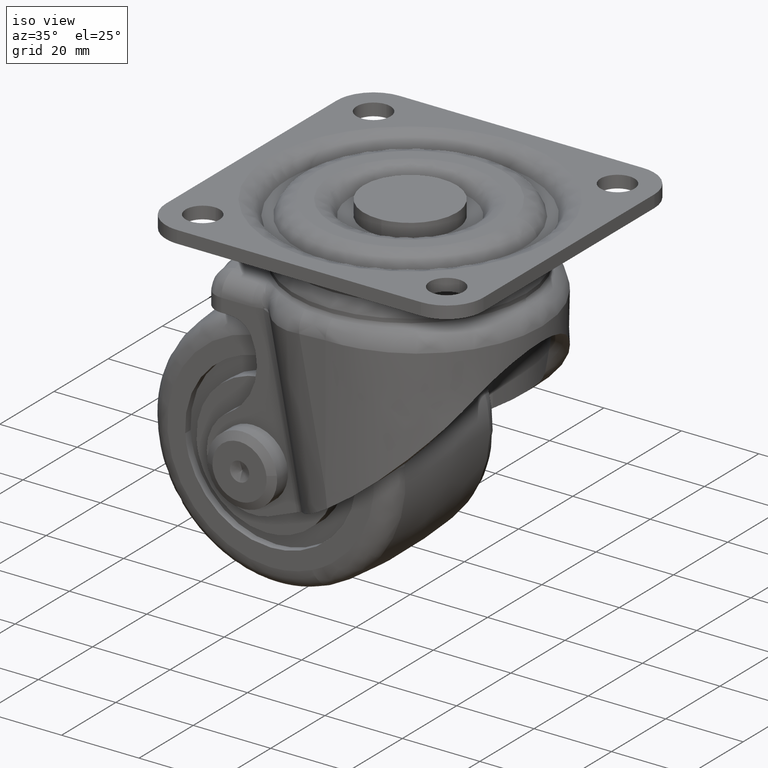
[diagram: clean part render]
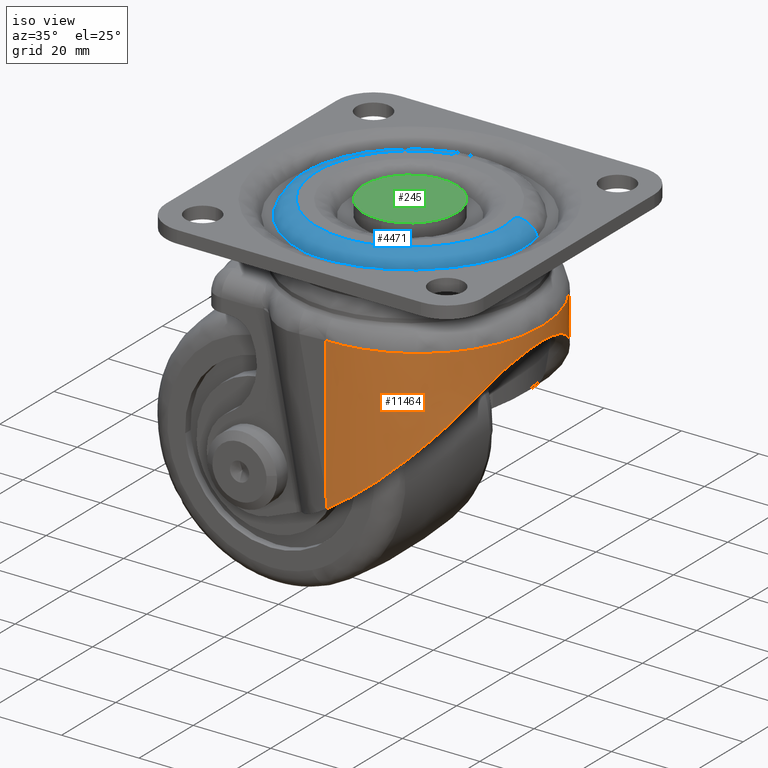
[diagram: same view with three faces highlighted in distinct colors, each labeled with its STEP entity id]
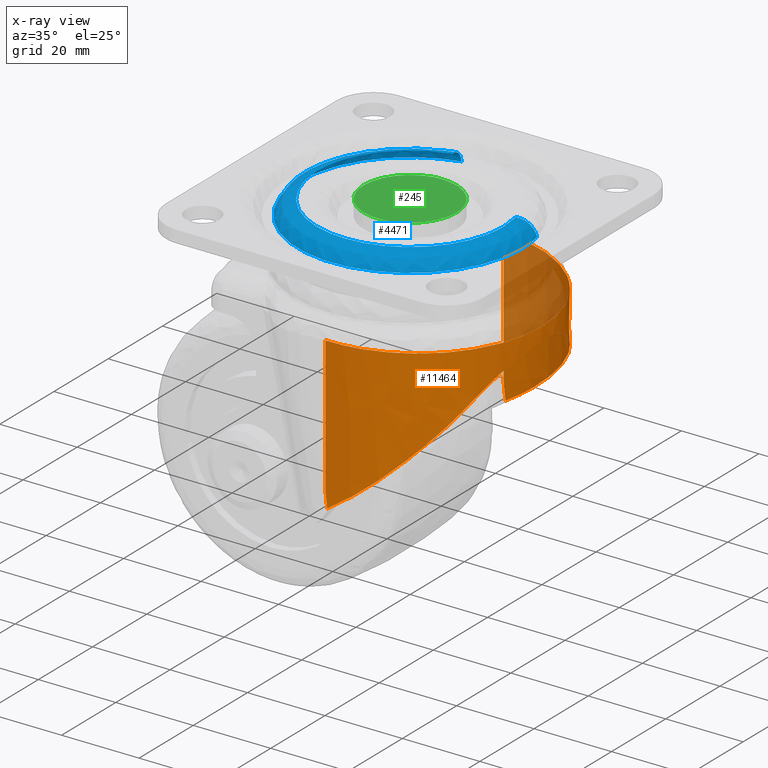
[diagram: x-ray of the same camera — body ghosted, the three highlighted faces saturated]
A machine part, iso view with three faces highlighted in distinct colors.
The next image is the same camera in x-ray (body ghosted, the three faces saturated) — at least one of them is partly hidden behind the body in this view.
Their STEP definitions:

[orange] entity #11464 — the highlighted face is a freeform B-spline surface patch.
#7879=CARTESIAN_POINT('',(7.828067399618530,32.873505000000087,-25.250238857549650));
#7880=VERTEX_POINT('',#7879);
#8230=CARTESIAN_POINT('',(7.828067198806939,-32.873505000000087,-25.250238814185099));
#8231=VERTEX_POINT('',#8230);
#8245=CARTESIAN_POINT('',(7.828067399618530,32.873505000000087,-25.250238857549650));
#8246=CARTESIAN_POINT('',(8.093279971898323,32.873504998305073,-25.307510195833391));
#8247=CARTESIAN_POINT('',(8.358567195679328,32.870140758915191,-25.364759514810132));
#8248=CARTESIAN_POINT('',(8.887618360227270,32.856752036419152,-25.478854672692449));
#8249=CARTESIAN_POINT('',(9.151562844805241,32.846730079416353,-25.535739527853622));
#8250=CARTESIAN_POINT('',(9.941670981653529,32.806786243524662,-25.705912584852829));
#8251=CARTESIAN_POINT('',(10.466110402130370,32.766992563413140,-25.818719538813021));
#8252=CARTESIAN_POINT('',(12.032633824755930,32.608725851104381,-26.155258643000931));
#8253=CARTESIAN_POINT('',(13.067939084616270,32.451458479889510,-26.377112814722821));
#8254=CARTESIAN_POINT('',(15.120609491291120,32.034364237845672,-26.815946782701630));
#8255=CARTESIAN_POINT('',(16.137975112037271,31.774539890359328,-27.032926546846689));
#8256=CARTESIAN_POINT('',(17.650286512325991,31.306373233354378,-27.354751426207091));
#8257=CARTESIAN_POINT('',(18.152096698354580,31.137222707616999,-27.461417986346390));
#8258=CARTESIAN_POINT('',(18.776430017549231,30.909071511441589,-27.593984440975841));
#8259=CARTESIAN_POINT('',(18.901164385450858,30.862598148042281,-27.620462389679570));
#8260=CARTESIAN_POINT('',(19.149641728497659,30.768238905111389,-27.673193608169878));
#8261=CARTESIAN_POINT('',(19.521132482207239,30.624486850375639,-27.752009022642611));
#8262=CARTESIAN_POINT('',(19.888969055909602,30.474134678995028,-27.829986352332281));
#8263=CARTESIAN_POINT('',(21.107051303722649,29.958441610767618,-28.088072227824760));
#8264=CARTESIAN_POINT('',(22.055849288826479,29.499532539456268,-28.288670931700668));
#8265=CARTESIAN_POINT('',(23.903199063189799,28.491023197940770,-28.678516710831900));
#8266=CARTESIAN_POINT('',(24.801749061751789,27.941419601645979,-28.867763122835761));
#8267=CARTESIAN_POINT('',(26.111608552920490,27.048528462533710,-29.143164524720309));
#8268=CARTESIAN_POINT('',(26.541889629013468,26.739463649738251,-29.233551150248140));
#8269=CARTESIAN_POINT('',(27.177663945619400,26.258468830688351,-29.366993295484750));
#8270=CARTESIAN_POINT('',(27.387980087771648,26.095236278272090,-29.411117549611159));
#8271=CARTESIAN_POINT('',(27.805362611848420,25.762911527415831,-29.498648289198869));
#8272=CARTESIAN_POINT('',(28.012521080482561,25.593742104752749,-29.542074069971100));
#8273=CARTESIAN_POINT('',(29.039126487008769,24.733881363873110,-29.757190741190492));
#8274=CARTESIAN_POINT('',(29.820373259403588,24.010292081833160,-29.920617087029491));
#8275=CARTESIAN_POINT('',(31.305517622227800,22.494168388840549,-30.230869716361500));
#8276=CARTESIAN_POINT('',(32.009407556582651,21.701627098711619,-30.377694048056401));
#8277=CARTESIAN_POINT('',(33.340247614989501,20.047988403173299,-30.654966039197060));
#8278=CARTESIAN_POINT('',(33.967200963900041,19.186893825229550,-30.785414126589309));
#8279=CARTESIAN_POINT('',(34.701677108293730,18.066687055731379,-30.938078791438020));
#8280=CARTESIAN_POINT('',(34.918320269330707,17.727329542660229,-30.983096705448631));
#8281=CARTESIAN_POINT('',(35.129355626630492,17.382977274325111,-31.026932222161779));
#8282=CARTESIAN_POINT('',(35.268792032493558,17.152292374344650,-31.055891764664409));
#8283=CARTESIAN_POINT('',(35.337899145021836,17.036362283822911,-31.070242751807299));
#8284=CARTESIAN_POINT('',(35.679338743488060,16.455528912601132,-31.141138277067061));
#8285=CARTESIAN_POINT('',(35.940153684959867,15.985835263372451,-31.195264675037141));
#8286=CARTESIAN_POINT('',(36.686328715903308,14.561976837102630,-31.350049938608009));
#8287=CARTESIAN_POINT('',(37.135504809563962,13.593069585909429,-31.443133427375649));
#8288=CARTESIAN_POINT('',(37.939063105766557,11.616640838822541,-31.609549882782339));
#8289=CARTESIAN_POINT('',(38.293443453373271,10.609118572034101,-31.682882273962029));
#8290=CARTESIAN_POINT('',(38.753173819288570,9.068575816264236,-31.777970853986272));
#8291=CARTESIAN_POINT('',(38.894422797250279,8.550176391710064,-31.807177511200081));
#8292=CARTESIAN_POINT('',(39.088012934104867,7.765131207386378,-31.847198618845312));
#8293=CARTESIAN_POINT('',(39.149494327021792,7.502207887861103,-31.859907203079459));
#8294=CARTESIAN_POINT('',(39.266293316835707,6.973851057738139,-31.884047896021830));
#8295=CARTESIAN_POINT('',(39.321639809607071,6.708235114585682,-31.895485973886700));
#8296=CARTESIAN_POINT('',(39.581680815702107,5.379687563130332,-31.949222181436848));
#8297=CARTESIAN_POINT('',(39.737417662653797,4.311200675853126,-31.981389561936311));
#8298=CARTESIAN_POINT('',(39.945603259620427,2.163070799419821,-32.024386274176237));
#8299=CARTESIAN_POINT('',(39.998053036768553,1.083410740793682,-32.035215772963817));
#8300=CARTESIAN_POINT('',(39.997931040178187,-1.087183704122400,-32.035190581581531));
#8301=CARTESIAN_POINT('',(39.945368026024383,-2.163351336195762,-32.024337675492639));
#8302=CARTESIAN_POINT('',(39.738897655133378,-4.298063402932841,-31.981695241420059));
#8303=CARTESIAN_POINT('',(39.584979957103812,-5.356606039188224,-31.949903573641009));
#8304=CARTESIAN_POINT('',(39.176420538942672,-7.456174801922487,-31.865477465905780));
#8305=CARTESIAN_POINT('',(38.921782739889601,-8.497201614282968,-31.812843952859609));
#8306=CARTESIAN_POINT('',(38.539110744902182,-9.787288743650283,-31.733695268268349));
#8307=CARTESIAN_POINT('',(38.419469921325337,-10.173473216629880,-31.708946509893352));
#8308=CARTESIAN_POINT('',(38.292495626985051,-10.558382166776269,-31.682674774714680));
#8309=CARTESIAN_POINT('',(38.206206609205402,-10.814702969403630,-31.664819653162791));
#8310=CARTESIAN_POINT('',(38.162217639181677,-10.942788978465620,-31.655716661181849));
#8311=CARTESIAN_POINT('',(37.938744124851652,-11.580826912269069,-31.609467701666659));
#8312=CARTESIAN_POINT('',(37.748336108051816,-12.084674869599670,-31.570049955843430));
#8313=CARTESIAN_POINT('',(37.142936519382637,-13.576872864167550,-31.444673451563009));
#8314=CARTESIAN_POINT('',(36.693850311954783,-14.545922876519841,-31.351608782870819));
#8315=CARTESIAN_POINT('',(35.706430220845299,-16.433491480891931,-31.146782872677299));
#8316=CARTESIAN_POINT('',(35.168094335345792,-17.352008962817159,-31.035021418848540));
#8317=CARTESIAN_POINT('',(34.293007852441093,-18.691510846066421,-30.853136903128402));
#8318=CARTESIAN_POINT('',(33.990028714490514,-19.131621152411459,-30.790130706807620));
#8319=CARTESIAN_POINT('',(33.518367210536752,-19.782048403417519,-30.691986253180119));
#8320=CARTESIAN_POINT('',(33.358279899849961,-19.997233690458430,-30.658665281926542));
#8321=CARTESIAN_POINT('',(33.032310324520239,-20.424321698126711,-30.590796003333651));
#8322=CARTESIAN_POINT('',(32.866240692888262,-20.636446929523821,-30.556208637927771));
#8323=CARTESIAN_POINT('',(32.025691611940502,-21.683304811426439,-30.381090766303121));
#8324=CARTESIAN_POINT('',(31.318098899953299,-22.480416724448840,-30.233495279811859));
#8325=CARTESIAN_POINT('',(29.834835236726079,-23.996419983529218,-29.923640919229040));
#8326=CARTESIAN_POINT('',(29.059158500504481,-24.715304746241198,-29.761381074924941));
#8327=CARTESIAN_POINT('',(27.439932963707779,-26.075057794356791,-29.422099898452149));
#8328=CARTESIAN_POINT('',(26.596387923118499,-26.715930468976829,-29.245079676212399));
#8329=CARTESIAN_POINT('',(25.498439145623269,-27.466978069844028,-29.014246462693791));
#8330=CARTESIAN_POINT('',(25.276668447853350,-27.614679595467830,-28.967600792851460));
#8331=CARTESIAN_POINT('',(24.940704591215319,-27.832427628328549,-28.896903975458908));
#8332=CARTESIAN_POINT('',(24.828100418786139,-27.904416124005550,-28.873203310856880));
#8333=CARTESIAN_POINT('',(24.602368354836230,-28.046751183262639,-28.825680736250970));
#8334=CARTESIAN_POINT('',(24.036462863400541,-28.398659725868558,-28.706515231053590));
#8335=CARTESIAN_POINT('',(23.462735860162510,-28.731058383911940,-28.585563186499549));
#8336=CARTESIAN_POINT('',(22.071057810980669,-29.492050911227199,-28.291885579249740));
#8337=CARTESIAN_POINT('',(20.176268044230810,-30.408843015264029,-27.891283686511251));
#8338=CARTESIAN_POINT('',(18.204296413246681,-31.132900301526622,-27.472629447670219));
#8339=CARTESIAN_POINT('',(16.696006216727600,-31.602698811374420,-27.151685322287939));
#8340=CARTESIAN_POINT('',(16.188348945439710,-31.747069378531190,-27.043543052798750));
#8341=CARTESIAN_POINT('',(15.419394207083711,-31.944956130059229,-26.879546460558380));
#8342=CARTESIAN_POINT('',(15.161830562680150,-32.007805383880523,-26.824583594639201));
#8343=CARTESIAN_POINT('',(14.644183704385860,-32.127205053134993,-26.714054490344971));
#8344=CARTESIAN_POINT('',(14.384943859436030,-32.183560132961020,-26.658668319386660));
#8345=CARTESIAN_POINT('',(13.087109808700720,-32.448635001297333,-26.381221729218929));
#8346=CARTESIAN_POINT('',(12.043166030061141,-32.607480673693402,-26.157519365517761));
#8347=CARTESIAN_POINT('',(9.944070142835951,-32.819914759441531,-25.706570591762489));
#8348=CARTESIAN_POINT('',(8.888918211551189,-32.873505000000087,-25.479324323660649));
#8349=CARTESIAN_POINT('',(7.828067198806939,-32.873505000000087,-25.250238814185099));
#8350=B_SPLINE_CURVE_WITH_KNOTS('',3,(#8245,#8246,#8247,#8248,#8249,#8250,#8251,#8252,#8253,#8254,#8255,#8256,#8257,#8258,#8259,#8260,#8261,#8262,#8263,#8264,#8265,#8266,#8267,#8268,#8269,#8270,#8271,#8272,#8273,#8274,#8275,#8276,#8277,#8278,#8279,#8280,#8281,#8282,#8283,#8284,#8285,#8286,#8287,#8288,#8289,#8290,#8291,#8292,#8293,#8294,#8295,#8296,#8297,#8298,#8299,#8300,#8301,#8302,#8303,#8304,#8305,#8306,#8307,#8308,#8309,#8310,#8311,#8312,#8313,#8314,#8315,#8316,#8317,#8318,#8319,#8320,#8321,#8322,#8323,#8324,#8325,#8326,#8327,#8328,#8329,#8330,#8331,#8332,#8333,#8334,#8335,#8336,#8337,#8338,#8339,#8340,#8341,#8342,#8343,#8344,#8345,#8346,#8347,#8348,#8349),.UNSPECIFIED.,.F.,.U.,(4,2,2,2,2,2,2,2,1,2,2,2,2,2,2,2,2,2,1,2,2,2,2,2,2,2,2,2,2,2,2,2,1,2,2,2,2,2,2,2,2,2,2,2,2,2,1,2,1,2,2,2,2,2,4),(0.0,0.007812500000000,0.015625000000000,0.031250000000000,0.062500000000001,0.093750000000002,0.109375000000002,0.113281250000002,0.117187500000002,0.125000000000002,0.156250000000002,0.187500000000002,0.203125000000002,0.210937500000002,0.218750000000002,0.250000000000002,0.281250000000002,0.312500000000002,0.320312500000002,0.324218750000002,0.328125000000002,0.343750000000002,0.375000000000001,0.406250000000001,0.421875000000001,0.429687500000001,0.437500000000000,0.468750000000000,0.499999999999999,0.531249999999998,0.562499999999998,0.593749999999997,0.601562499999997,0.605468749999997,0.609374999999996,0.624999999999996,0.656249999999996,0.687499999999995,0.703124999999995,0.710937499999995,0.718749999999995,0.749999999999995,0.781249999999995,0.812499999999995,0.820312499999995,0.824218749999995,0.828124999999995,0.843749999999996,0.874999999999997,0.906249999999998,0.921874999999998,0.929687499999998,0.937499999999999,0.968749999999999,1.0),.UNSPECIFIED.);
#8351=EDGE_CURVE('',#7880,#8231,#8350,.T.);
#9930=CARTESIAN_POINT('',(28.336888157190302,22.154541998388599,-47.024263574228002));
#9931=VERTEX_POINT('',#9930);
#9951=CARTESIAN_POINT('',(28.336887793409449,-22.154542323593951,-47.024263890994497));
#9952=VERTEX_POINT('',#9951);
#9953=CARTESIAN_POINT('',(28.336887793409449,-22.154542323593951,-47.024263890994497));
#9954=CARTESIAN_POINT('',(28.709730286123499,-21.821236202970990,-46.699606852528710));
#9955=CARTESIAN_POINT('',(29.070947393482552,-21.489628479403709,-46.361386039629913));
#9956=CARTESIAN_POINT('',(29.776828985424402,-20.821863288916759,-45.672440369730467));
#9957=CARTESIAN_POINT('',(30.121416288847190,-20.485782287055670,-45.321561764998208));
#9958=CARTESIAN_POINT('',(30.628508399380809,-19.973989347931610,-44.792716090720852));
#9959=CARTESIAN_POINT('',(30.795932070902339,-19.802077878066179,-44.615941738789189));
#9960=CARTESIAN_POINT('',(31.127331905821588,-19.455542170966289,-44.262901099619718));
#9961=CARTESIAN_POINT('',(31.291351754733821,-19.280875018472639,-44.086588990034848));
#9962=CARTESIAN_POINT('',(31.778647610531131,-18.751869935494650,-43.559540467042289));
#9963=CARTESIAN_POINT('',(32.097190205850552,-18.392511143796231,-43.210741273944471));
#9964=CARTESIAN_POINT('',(32.722280611173673,-17.656577134071689,-42.523678887380782));
#9965=CARTESIAN_POINT('',(33.028821366213442,-17.280005424140018,-42.185404816407363));
#9966=CARTESIAN_POINT('',(33.629649443489427,-16.506330227218239,-41.523306828283900));
#9967=CARTESIAN_POINT('',(33.923931504686017,-16.109232096576289,-41.199471367826902));
#9968=CARTESIAN_POINT('',(34.786951705926860,-14.882753208836700,-40.253805057810872));
#9969=CARTESIAN_POINT('',(35.336106717057604,-14.018257360990409,-39.657950570090733));
#9970=CARTESIAN_POINT('',(35.980871132081120,-12.865179052822411,-38.965565954289723));
#9971=CARTESIAN_POINT('',(36.107720255922857,-12.630935078281521,-38.829699262639167));
#9972=CARTESIAN_POINT('',(36.294610264022978,-12.273831805315140,-38.629974216853213));
#9973=CARTESIAN_POINT('',(36.356326759516847,-12.153866977677669,-38.564095656161420));
#9974=CARTESIAN_POINT('',(36.478181415848098,-11.912801728834260,-38.434160280405280));
#9975=CARTESIAN_POINT('',(36.538371493787700,-11.791602979980899,-38.370047938935912));
#9976=CARTESIAN_POINT('',(36.835564475481597,-11.182236868855970,-38.053792998826367));
#9977=CARTESIAN_POINT('',(37.061308381387498,-10.683965728868170,-37.814552159697222));
#9978=CARTESIAN_POINT('',(37.486755991506548,-9.664612608191790,-37.364611461096132));
#9979=CARTESIAN_POINT('',(37.686465041406272,-9.143537905240116,-37.153899698004622));
#9980=CARTESIAN_POINT('',(37.964675809792261,-8.343540699107653,-36.860491036634407));
#9981=CARTESIAN_POINT('',(38.053850170540123,-8.073806493454153,-36.766471060388639));
#9982=CARTESIAN_POINT('',(38.224713812583907,-7.527924761602559,-36.586300759857032));
#9983=CARTESIAN_POINT('',(38.306445807265860,-7.251554639179628,-36.500105156338734));
#9984=CARTESIAN_POINT('',(38.538141400988792,-6.418733911603551,-36.255647090033037));
#9985=CARTESIAN_POINT('',(38.675262309835702,-5.856643492171245,-36.110807207875652));
#9986=CARTESIAN_POINT('',(38.913215374392713,-4.718079218756734,-35.859040649316071));
#9987=CARTESIAN_POINT('',(39.014050545778083,-4.141605342324440,-35.752116934974040));
#9988=CARTESIAN_POINT('',(39.136491550460242,-3.265426781967710,-35.622073308502493));
#9989=CARTESIAN_POINT('',(39.172498840937408,-2.971453809019884,-35.583789100538503));
#9990=CARTESIAN_POINT('',(39.219057546816501,-2.527520170389593,-35.534251058993149));
#9991=CARTESIAN_POINT('',(39.233334764876503,-2.379046465263832,-35.519053442953421));
#9992=CARTESIAN_POINT('',(39.259360176158893,-2.081088545259330,-35.491341125176291));
#9993=CARTESIAN_POINT('',(39.271110591984502,-1.931516049606944,-35.478824054530293));
#9994=CARTESIAN_POINT('',(39.323166342707090,-1.185315184910817,-35.423357122463422));
#9995=CARTESIAN_POINT('',(39.343707529862087,-0.590448817200294,-35.401428956859782));
#9996=CARTESIAN_POINT('',(39.343542769096992,1.188006330010789,-35.401604736172892));
#9997=CARTESIAN_POINT('',(39.261203686000712,2.365461347671506,-35.489609088391539));
#9998=CARTESIAN_POINT('',(39.058211028661873,3.827390289023612,-35.705216457335467));
#9999=CARTESIAN_POINT('',(39.012596402470841,4.119280666803354,-35.753624680969992));
#10000=CARTESIAN_POINT('',(38.911349002373001,4.702074197753696,-35.860955192014949));
#10001=CARTESIAN_POINT('',(38.856100051870733,4.990767726918785,-35.919470182587247));
#10002=CARTESIAN_POINT('',(38.677162876988007,5.848713717749471,-36.108799102517082));
#10003=CARTESIAN_POINT('',(38.540273690665188,6.410030122149787,-36.253395138771822));
#10004=CARTESIAN_POINT('',(38.233995189697353,7.512991682143375,-36.576548771674943));
#10005=CARTESIAN_POINT('',(38.064599577712862,8.054633367432681,-36.755111825628752));
#10006=CARTESIAN_POINT('',(37.787696034734722,8.853184836084827,-37.047137317898098));
#10007=CARTESIAN_POINT('',(37.691589110818477,9.117046615020842,-37.148517091122962));
#10008=CARTESIAN_POINT('',(37.541885268626828,9.509433721249033,-37.306545005376186));
#10009=CARTESIAN_POINT('',(37.491059884673511,9.639661650245076,-37.360214426010671));
#10010=CARTESIAN_POINT('',(37.387586284333082,9.898992871919198,-37.469528291029349));
#10011=CARTESIAN_POINT('',(37.334914351099599,10.028147532604780,-37.525197885955407));
#10012=CARTESIAN_POINT('',(37.068117495454359,10.668645186637120,-37.807339340251779));
#10013=CARTESIAN_POINT('',(36.842934188718587,11.166164785280030,-38.045977269939357));
#10014=CARTESIAN_POINT('',(36.371769848237221,12.134126914532100,-38.547309884455707));
#10015=CARTESIAN_POINT('',(36.125784109929121,12.604557603850701,-38.810019154431387));
#10016=CARTESIAN_POINT('',(35.359941140859902,13.978404922194210,-39.632225277305700));
#10017=CARTESIAN_POINT('',(34.812386167086380,14.844312684217741,-40.226077053588170));
#10018=CARTESIAN_POINT('',(34.089883258375060,15.873908410493350,-41.017595405270512));
#10019=CARTESIAN_POINT('',(33.943464271728303,16.077192101771178,-41.178338568675372));
#10020=CARTESIAN_POINT('',(33.646926772298002,16.478763311370422,-41.504391527782929));
#10021=CARTESIAN_POINT('',(33.496737094246569,16.677142364630122,-41.669780413914040));
#10022=CARTESIAN_POINT('',(33.041239620372913,17.264638355569449,-42.171706675601619));
#10023=CARTESIAN_POINT('',(32.732111696675950,17.644733899345152,-42.512848799401553));
#10024=CARTESIAN_POINT('',(32.103109119280539,18.385804840568611,-43.204259420532317));
#10025=CARTESIAN_POINT('',(31.783240684147309,18.746776164012591,-43.554538072351832));
#10026=CARTESIAN_POINT('',(31.131982011726269,19.453992006105288,-44.258994154041993));
#10027=CARTESIAN_POINT('',(30.800602302598790,19.800230383722329,-44.613188004461797));
#10028=CARTESIAN_POINT('',(30.124345896859541,20.482894603916449,-45.318557710505672));
#10029=CARTESIAN_POINT('',(29.779494034591771,20.819300228036390,-45.669778145127083));
#10030=CARTESIAN_POINT('',(29.072640822283500,21.488068141523112,-46.359794041157492));
#10031=CARTESIAN_POINT('',(28.710719011881629,21.820352313811600,-46.698745904468687));
#10032=CARTESIAN_POINT('',(28.336888157190280,22.154541998388620,-47.024263574228023));
#10033=B_SPLINE_CURVE_WITH_KNOTS('',3,(#9953,#9954,#9955,#9956,#9957,#9958,#9959,#9960,#9961,#9962,#9963,#9964,#9965,#9966,#9967,#9968,#9969,#9970,#9971,#9972,#9973,#9974,#9975,#9976,#9977,#9978,#9979,#9980,#9981,#9982,#9983,#9984,#9985,#9986,#9987,#9988,#9989,#9990,#9991,#9992,#9993,#9994,#9995,#9996,#9997,#9998,#9999,#10000,#10001,#10002,#10003,#10004,#10005,#10006,#10007,#10008,#10009,#10010,#10011,#10012,#10013,#10014,#10015,#10016,#10017,#10018,#10019,#10020,#10021,#10022,#10023,#10024,#10025,#10026,#10027,#10028,#10029,#10030,#10031,#10032),.UNSPECIFIED.,.F.,.U.,(4,2,2,2,2,2,2,2,2,2,2,2,2,2,2,2,2,2,2,2,2,2,2,2,2,2,2,2,2,2,2,2,2,2,2,2,2,2,2,4),(0.0,0.031250000000000,0.062500000000000,0.078125000000000,0.093750000000000,0.125000000000000,0.156250000000000,0.187500000000000,0.250000000000000,0.265625000000000,0.273437500000000,0.281250000000000,0.312500000000000,0.343750000000001,0.359375000000001,0.375000000000001,0.406250000000001,0.437500000000000,0.453125000000000,0.460937500000000,0.468750000000000,0.500000000000000,0.562499999999999,0.578124999999999,0.593749999999999,0.624999999999999,0.656249999999998,0.671874999999998,0.679687499999998,0.687499999999998,0.718749999999998,0.749999999999998,0.812499999999998,0.828124999999998,0.843749999999998,0.874999999999998,0.906249999999999,0.937499999999999,0.968750000000000,1.0),.UNSPECIFIED.);
#10034=EDGE_CURVE('',#9952,#9931,#10033,.T.);
#10864=CARTESIAN_POINT('',(1.126497264451492,-32.873505000000087,-59.726827333279402));
#10865=VERTEX_POINT('',#10864);
#10879=CARTESIAN_POINT('',(0.816444291282612,-32.870239910576153,-63.750063852508013));
#10880=VERTEX_POINT('',#10879);
#10910=CARTESIAN_POINT('',(1.126497264451492,-32.873505000000087,-59.726827333279402));
#10911=CARTESIAN_POINT('',(1.023144311785857,-32.873505000000037,-61.067906403002432));
#10912=CARTESIAN_POINT('',(0.919791323781616,-32.872416795540801,-62.408986574256538));
#10913=CARTESIAN_POINT('',(0.816444291282518,-32.870239910576181,-63.750063852508013));
#10914=QUASI_UNIFORM_CURVE('',3,(#10910,#10911,#10912,#10913),.UNSPECIFIED.,.F.,.U.);
#10915=EDGE_CURVE('',#10865,#10880,#10914,.T.);
#11071=CARTESIAN_POINT('',(1.126497374082770,32.873505000000087,-59.726827845725801));
#11072=VERTEX_POINT('',#11071);
#11078=CARTESIAN_POINT('',(0.816444291001655,32.870239910579762,-63.750063852618901));
#11079=VERTEX_POINT('',#11078);
#11080=CARTESIAN_POINT('',(0.816444291001655,32.870239910579762,-63.750063852618901));
#11081=CARTESIAN_POINT('',(0.919791323774792,32.872416795540722,-62.408986574344802));
#11082=CARTESIAN_POINT('',(1.023144311596685,32.873505000000087,-61.067906403032893));
#11083=CARTESIAN_POINT('',(1.126497374082770,32.873505000000087,-59.726827845725801));
#11084=QUASI_UNIFORM_CURVE('',3,(#11080,#11081,#11082,#11083),.UNSPECIFIED.,.F.,.U.);
#11085=EDGE_CURVE('',#11079,#11072,#11084,.T.);
#11125=CARTESIAN_POINT('',(1.126497374082770,32.873505000000087,-59.726827845725801));
#11126=CARTESIAN_POINT('',(7.828067399618530,32.873505000000087,-25.250238857549650));
#11127=QUASI_UNIFORM_CURVE('',1,(#11125,#11126),.UNSPECIFIED.,.F.,.U.);
#11128=EDGE_CURVE('',#11072,#7880,#11127,.T.);
#11138=CARTESIAN_POINT('',(1.126497264451492,-32.873505000000087,-59.726827333279402));
#11139=CARTESIAN_POINT('',(7.828067198806939,-32.873505000000087,-25.250238814185099));
#11140=QUASI_UNIFORM_CURVE('',1,(#11138,#11139),.UNSPECIFIED.,.F.,.U.);
#11141=EDGE_CURVE('',#10865,#8231,#11140,.T.);
#11375=CARTESIAN_POINT('',(-1.124296116077032,32.846847972226158,-64.369390794005142));
#11376=CARTESIAN_POINT('',(6.720115419336418,32.846847972226158,-24.013391926569920));
#11377=CARTESIAN_POINT('',(32.853114623008686,34.241628286648186,-70.973930397167862));
#11378=CARTESIAN_POINT('',(40.697526158422129,34.241628286648186,-30.617931529732633));
#11379=CARTESIAN_POINT('',(32.442152234548892,-0.397288045275145,-70.894047401055076));
#11380=CARTESIAN_POINT('',(40.286563769962342,-0.397288045275138,-30.538048533619840));
#11381=CARTESIAN_POINT('',(32.031189846089077,-35.036204377198480,-70.814164404942304));
#11382=CARTESIAN_POINT('',(39.875601381502548,-35.036204377198473,-30.458165537507053));
#11383=CARTESIAN_POINT('',(-1.903204673836791,-32.805263072719441,-64.217986307757826));
#11384=CARTESIAN_POINT('',(5.941206861576680,-32.805263072719441,-23.861987440322579));
#11392=(BOUNDED_SURFACE()B_SPLINE_SURFACE(1,2,((#11375,#11377,#11379,#11381,#11383),(#11376,#11378,#11380,#11382,#11384)),.UNSPECIFIED.,.F.,.F.,.U.)B_SPLINE_SURFACE_WITH_KNOTS((2,2),(3,2,3),(0.0,41.111329787850003),(0.0,56.494289423881433,112.988578847762890),.UNSPECIFIED.)GEOMETRIC_REPRESENTATION_ITEM()RATIONAL_B_SPLINE_SURFACE(((1.0,0.688354575693754,1.0,0.688354575693754,1.0),(1.0,0.688354575693754,1.0,0.688354575693754,1.0)))REPRESENTATION_ITEM('')SURFACE());
#11393=ORIENTED_EDGE('',*,*,#11128,.T.);
#11394=ORIENTED_EDGE('',*,*,#8351,.T.);
#11395=ORIENTED_EDGE('',*,*,#11141,.F.);
#11396=ORIENTED_EDGE('',*,*,#10915,.T.);
#11397=CARTESIAN_POINT('',(0.816444291282612,-32.870239910576153,-63.750063852508013));
#11398=CARTESIAN_POINT('',(0.969556543443956,-32.868283827188257,-63.689655816518780));
#11399=CARTESIAN_POINT('',(1.122644759979392,-32.865448950651633,-63.628796671943782));
#11400=CARTESIAN_POINT('',(1.428046779433176,-32.858054487190799,-63.506466636843108));
#11401=CARTESIAN_POINT('',(1.885251996233229,-32.844373246874738,-63.321950457893543));
#11402=CARTESIAN_POINT('',(2.339787940101854,-32.823036244689682,-63.134383965317497));
#11403=CARTESIAN_POINT('',(3.245360371305170,-32.770430043415729,-62.755217038165917));
#11404=CARTESIAN_POINT('',(3.844410853756863,-32.722123992303928,-62.497061021680103));
#11405=CARTESIAN_POINT('',(5.627988132915096,-32.539403943280611,-61.706703653825798));
#11406=CARTESIAN_POINT('',(6.798959513919278,-32.367286405168130,-61.158619530039260));
#11407=CARTESIAN_POINT('',(9.106463872067371,-31.929907903079400,-60.021216903398503));
#11408=CARTESIAN_POINT('',(10.242992922257971,-31.664629172116118,-59.431896084880456));
#11409=CARTESIAN_POINT('',(11.642852717596419,-31.277606880110980,-58.670059237674813));
#11410=CARTESIAN_POINT('',(11.921783383353310,-31.197424614482681,-58.516432228164653));
#11411=CARTESIAN_POINT('',(12.477575585624120,-31.031548792301759,-58.206672395277671));
#11412=CARTESIAN_POINT('',(12.754302002025200,-30.945889500376051,-58.050611254010263));
#11413=CARTESIAN_POINT('',(13.578537562475571,-30.681666344040469,-57.580351554644920));
#11414=CARTESIAN_POINT('',(14.121046153371310,-30.495586786177601,-57.263555236703830));
#11415=CARTESIAN_POINT('',(15.728438530302720,-29.908669029488038,-56.303709560918392));
#11416=CARTESIAN_POINT('',(16.773226567478169,-29.479235211011598,-55.651199493273772));
#11417=CARTESIAN_POINT('',(18.812503998101430,-28.547836336774481,-54.323195361768143));
#11418=CARTESIAN_POINT('',(19.806987398338642,-28.045868083718471,-53.647694604623020));
#11419=CARTESIAN_POINT('',(21.747816235531769,-26.970520361969179,-52.276145895386392));
#11420=CARTESIAN_POINT('',(22.694160835416241,-26.397152420662120,-51.580088311783967));
#11421=CARTESIAN_POINT('',(23.847711955108348,-25.634795597264940,-50.698974366473813));
#11422=CARTESIAN_POINT('',(24.076950651496439,-25.480034508236511,-50.522201008883592));
#11423=CARTESIAN_POINT('',(24.532492291907289,-25.165876070168459,-50.167605403969993));
#11424=CARTESIAN_POINT('',(24.758423443848130,-25.006731940462942,-49.990071055692880));
#11425=CARTESIAN_POINT('',(25.429799324807320,-24.523776478284571,-49.457620829200138));
#11426=CARTESIAN_POINT('',(25.869242528419619,-24.194164528484372,-49.102534840116782));
#11427=CARTESIAN_POINT('',(27.000213578487330,-23.309959327152949,-48.172247791303413));
#11428=CARTESIAN_POINT('',(27.678819240447080,-22.742864524953390,-47.597284990146179));
#11429=CARTESIAN_POINT('',(28.336887793409449,-22.154542323593951,-47.024263890994497));
#11430=B_SPLINE_CURVE_WITH_KNOTS('',3,(#11397,#11398,#11399,#11400,#11401,#11402,#11403,#11404,#11405,#11406,#11407,#11408,#11409,#11410,#11411,#11412,#11413,#11414,#11415,#11416,#11417,#11418,#11419,#11420,#11421,#11422,#11423,#11424,#11425,#11426,#11427,#11428,#11429),.UNSPECIFIED.,.F.,.U.,(4,2,1,2,2,2,2,2,2,2,2,2,2,2,2,2,4),(0.0,0.003906250000000,0.007812500000000,0.015625000000000,0.031250000000000,0.062500000000000,0.093750000000001,0.101562500000001,0.109375000000001,0.125000000000001,0.156250000000001,0.187500000000001,0.218750000000002,0.226562500000002,0.234375000000002,0.250000000000001,0.275330368639401),.UNSPECIFIED.);
#11431=EDGE_CURVE('',#10880,#9952,#11430,.T.);
#11432=ORIENTED_EDGE('',*,*,#11431,.T.);
#11433=ORIENTED_EDGE('',*,*,#10034,.T.);
#11434=CARTESIAN_POINT('',(28.336888157190302,22.154541998388599,-47.024263574228002));
#11435=CARTESIAN_POINT('',(27.650421847832849,22.768253943504799,-47.622010361180017));
#11436=CARTESIAN_POINT('',(26.944958124444661,23.355893632557208,-48.218950841407711));
#11437=CARTESIAN_POINT('',(25.359383368849979,24.589180610292392,-49.520274435448222));
#11438=CARTESIAN_POINT('',(24.471440067032070,25.224788024867060,-50.223683859993969));
#11439=CARTESIAN_POINT('',(22.640720152528228,26.430121727128000,-51.619700753433087));
#11440=CARTESIAN_POINT('',(21.697943891738799,26.999832883424311,-52.312322355530007));
#11441=CARTESIAN_POINT('',(19.754817845575051,28.073006036876151,-53.683579698825731));
#11442=CARTESIAN_POINT('',(18.754476179651011,28.576469355466202,-54.362224665362383));
#11443=CARTESIAN_POINT('',(17.465391538568529,29.162478774807671,-55.200088492077683));
#11444=CARTESIAN_POINT('',(17.205775328181250,29.277437569961439,-55.367045881669192));
#11445=CARTESIAN_POINT('',(16.684825480317791,29.502010772835639,-55.698477460574352));
#11446=CARTESIAN_POINT('',(16.423231290920022,29.611744903165800,-55.863121756733022));
#11447=CARTESIAN_POINT('',(15.635075280737061,29.933286972049000,-56.353810968436377));
#11448=CARTESIAN_POINT('',(15.105141087030059,30.137439503520440,-56.676612155876029));
#11449=CARTESIAN_POINT('',(13.501684546442840,30.719066756469921,-57.631811177779383));
#11450=CARTESIAN_POINT('',(12.414526679726711,31.065789496037230,-58.251006370477377));
#11451=CARTESIAN_POINT('',(10.202541683772891,31.674208105002510,-59.452954574537891));
#11452=CARTESIAN_POINT('',(9.077718381492977,31.935914022582690,-60.035710676406097));
#11453=CARTESIAN_POINT('',(6.788476160838921,32.368707143271720,-61.163456726657060));
#11454=CARTESIAN_POINT('',(5.624064292486276,32.539819086907627,-61.708449665305409));
#11455=CARTESIAN_POINT('',(3.252925991515227,32.782706361308612,-62.759158764623557));
#11456=CARTESIAN_POINT('',(2.046211884604851,32.854529091482902,-63.264878354745917));
#11457=CARTESIAN_POINT('',(0.816444291001655,32.870239910579762,-63.750063852618901));
#11458=B_SPLINE_CURVE_WITH_KNOTS('',3,(#11434,#11435,#11436,#11437,#11438,#11439,#11440,#11441,#11442,#11443,#11444,#11445,#11446,#11447,#11448,#11449,#11450,#11451,#11452,#11453,#11454,#11455,#11456,#11457),.UNSPECIFIED.,.F.,.U.,(4,2,2,2,2,2,2,2,2,2,2,4),(0.723713817875686,0.749999999999997,0.781249999999997,0.812499999999997,0.843749999999998,0.851562499999998,0.859374999999998,0.874999999999998,0.906249999999999,0.937499999999999,0.968749999999999,1.0),.UNSPECIFIED.);
#11459=EDGE_CURVE('',#9931,#11079,#11458,.T.);
#11460=ORIENTED_EDGE('',*,*,#11459,.T.);
#11461=ORIENTED_EDGE('',*,*,#11085,.T.);
#11462=EDGE_LOOP('',(#11393,#11394,#11395,#11396,#11432,#11433,#11460,#11461));
#11463=FACE_OUTER_BOUND('',#11462,.T.);
#11464=ADVANCED_FACE('',(#11463),#11392,.T.);

[blue] entity #4471 — the highlighted face is a freeform B-spline surface patch.
#4316=CARTESIAN_POINT('',(-6.518224914462426,28.323733843505046,-4.097917219405046));
#4317=CARTESIAN_POINT('',(-34.841958757967475,21.805508929042624,-4.097917219405047));
#4318=CARTESIAN_POINT('',(-28.323733843505046,-6.518224914462426,-4.097917219405046));
#4319=CARTESIAN_POINT('',(-21.805508929042624,-34.841958757967475,-4.097917219405047));
#4320=CARTESIAN_POINT('',(6.518224914462423,-28.323733843505046,-4.097917219405046));
#4321=CARTESIAN_POINT('',(34.841958757967475,-21.805508929042642,-4.097917219405047));
#4322=CARTESIAN_POINT('',(28.323733843505046,6.518224914462422,-4.097917219405046));
#4323=CARTESIAN_POINT('',(-6.338939381710615,27.544681911684421,0.260315686044922));
#4324=CARTESIAN_POINT('',(-33.883621293395038,21.205742529973811,0.260315686044922));
#4325=CARTESIAN_POINT('',(-27.544681911684421,-6.338939381710613,0.260315686044922));
#4326=CARTESIAN_POINT('',(-21.205742529973811,-33.883621293395038,0.260315686044922));
#4327=CARTESIAN_POINT('',(6.338939381710612,-27.544681911684421,0.260315686044922));
#4328=CARTESIAN_POINT('',(33.883621293395016,-21.205742529973811,0.260315686044922));
#4329=CARTESIAN_POINT('',(27.544681911684421,6.338939381710610,0.260315686044922));
#4330=CARTESIAN_POINT('',(-5.347049184503485,23.234607571453793,-0.009262301269301));
#4331=CARTESIAN_POINT('',(-28.581656755957269,17.887558386950310,-0.009262301269301));
#4332=CARTESIAN_POINT('',(-23.234607571453793,-5.347049184503483,-0.009262301269301));
#4333=CARTESIAN_POINT('',(-17.887558386950310,-28.581656755957269,-0.009262301269301));
#4334=CARTESIAN_POINT('',(5.347049184503483,-23.234607571453793,-0.009262301269301));
#4335=CARTESIAN_POINT('',(28.581656755957269,-17.887558386950310,-0.009262301269301));
#4336=CARTESIAN_POINT('',(23.234607571453793,5.347049184503481,-0.009262301269301));
#4344=(BOUNDED_SURFACE()B_SPLINE_SURFACE(2,2,((#4316,#4323,#4330),(#4317,#4324,#4331),(#4318,#4325,#4332),(#4319,#4326,#4333),(#4320,#4327,#4334),(#4321,#4328,#4335),(#4322,#4329,#4336)),.UNSPECIFIED.,.F.,.F.,.U.)B_SPLINE_SURFACE_WITH_KNOTS((3,2,2,3),(3,3),(0.0,48.154956102867637,96.309912205735287,144.464868308603000),(0.0,7.586702919284942),.UNSPECIFIED.)GEOMETRIC_REPRESENTATION_ITEM()RATIONAL_B_SPLINE_SURFACE(((0.918181750089528,0.687637941677636,0.919410797789222),(0.649252541850037,0.486233451561416,0.650121609812892),(0.918181750089528,0.687637941677636,0.919410797789222),(0.649252541850037,0.486233451561416,0.650121609812892),(0.918181750089528,0.687637941677636,0.919410797789222),(0.649252541850037,0.486233451561416,0.650121609812892),(0.918181750089528,0.687637941677636,0.919410797789222)))REPRESENTATION_ITEM('')SURFACE());
#4345=CARTESIAN_POINT('',(-5.415272196601411,23.531057978998170,-8.024402E-016));
#4346=VERTEX_POINT('',#4345);
#4347=CARTESIAN_POINT('',(-24.146135560195351,0.0,0.0));
#4348=VERTEX_POINT('',#4347);
#4349=CARTESIAN_POINT('',(-5.415272196601411,23.531057978998170,-8.024402E-016));
#4350=CARTESIAN_POINT('',(-24.146135560195347,19.220468811012125,0.0));
#4351=CARTESIAN_POINT('',(-24.146135560195351,0.0,0.0));
#4359=(BOUNDED_CURVE()B_SPLINE_CURVE(2,(#4349,#4350,#4351),.UNSPECIFIED.,.F.,.U.)B_SPLINE_CURVE_WITH_KNOTS((3,3),(0.788352912383906,1.0),.UNSPECIFIED.)CURVE()GEOMETRIC_REPRESENTATION_ITEM()RATIONAL_B_SPLINE_CURVE((0.923920098757905,0.752040013022517,1.0))REPRESENTATION_ITEM(''));
#4360=EDGE_CURVE('',#4346,#4348,#4359,.T.);
#4361=ORIENTED_EDGE('',*,*,#4360,.F.);
#4362=CARTESIAN_POINT('',(-6.503852067525138,28.261279310783600,-3.799999999886863));
#4363=VERTEX_POINT('',#4362);
#4364=CARTESIAN_POINT('',(-6.503852067525138,28.261279310783603,-3.799999999886863));
#4365=CARTESIAN_POINT('',(-6.293159189291830,27.345752601574688,-2.688732E-009));
#4366=CARTESIAN_POINT('',(-5.415272196601411,23.531057978998170,-8.024402E-016));
#4374=(BOUNDED_CURVE()B_SPLINE_CURVE(2,(#4364,#4365,#4366),.UNSPECIFIED.,.F.,.U.)B_SPLINE_CURVE_WITH_KNOTS((3,3),(-1.694736704228530,-0.301188722580725),.UNSPECIFIED.)CURVE()GEOMETRIC_REPRESENTATION_ITEM()RATIONAL_B_SPLINE_CURVE((0.898195736541802,0.707679798815239,0.899313096726668))REPRESENTATION_ITEM(''));
#4375=EDGE_CURVE('',#4363,#4346,#4374,.T.);
#4376=ORIENTED_EDGE('',*,*,#4375,.F.);
#4377=CARTESIAN_POINT('',(-29.0,0.0,-3.800000000000115));
#4378=VERTEX_POINT('',#4377);
#4379=CARTESIAN_POINT('',(-29.0,0.0,-3.800000000000115));
#4380=CARTESIAN_POINT('',(-28.999999999999993,23.084174034260506,-3.800000000000115));
#4381=CARTESIAN_POINT('',(-6.503852067525138,28.261279310783607,-3.799999999886863));
#4389=(BOUNDED_CURVE()B_SPLINE_CURVE(2,(#4379,#4380,#4381),.UNSPECIFIED.,.F.,.U.)B_SPLINE_CURVE_WITH_KNOTS((3,3),(0.0,0.211647087618106),.UNSPECIFIED.)CURVE()GEOMETRIC_REPRESENTATION_ITEM()RATIONAL_B_SPLINE_CURVE((1.0,0.752040013020161,0.923920098761173))REPRESENTATION_ITEM(''));
#4390=EDGE_CURVE('',#4378,#4363,#4389,.T.);
#4391=ORIENTED_EDGE('',*,*,#4390,.F.);
#4392=CARTESIAN_POINT('',(29.0,0.0,-3.800000000000115));
#4393=VERTEX_POINT('',#4392);
#4394=CARTESIAN_POINT('',(29.0,0.0,-3.800000000000115));
#4395=CARTESIAN_POINT('',(29.0,-29.0,-3.800000000000115));
#4396=CARTESIAN_POINT('',(0.0,-29.0,-3.800000000000115));
#4397=CARTESIAN_POINT('',(-29.0,-29.0,-3.800000000000115));
#4398=CARTESIAN_POINT('',(-29.0,0.0,-3.800000000000115));
#4406=(BOUNDED_CURVE()B_SPLINE_CURVE(2,(#4394,#4395,#4396,#4397,#4398),.UNSPECIFIED.,.F.,.U.)B_SPLINE_CURVE_WITH_KNOTS((3,2,3),(0.500000000000000,0.750000000000000,1.0),.UNSPECIFIED.)CURVE()GEOMETRIC_REPRESENTATION_ITEM()RATIONAL_B_SPLINE_CURVE((1.0,0.707106781186548,1.0,0.707106781186548,1.0))REPRESENTATION_ITEM(''));
#4407=EDGE_CURVE('',#4393,#4378,#4406,.T.);
#4408=ORIENTED_EDGE('',*,*,#4407,.F.);
#4409=CARTESIAN_POINT('',(28.261279310805609,6.503852067539091,-3.799999999986288));
#4410=VERTEX_POINT('',#4409);
#4411=CARTESIAN_POINT('',(28.261279310805616,6.503852067539091,-3.799999999986288));
#4412=CARTESIAN_POINT('',(29.000000000000004,3.293878729728006,-3.800000000000115));
#4413=CARTESIAN_POINT('',(29.0,0.0,-3.800000000000115));
#4421=(BOUNDED_CURVE()B_SPLINE_CURVE(2,(#4411,#4412,#4413),.UNSPECIFIED.,.F.,.U.)B_SPLINE_CURVE_WITH_KNOTS((3,3),(0.461647087618008,0.500000000000000),.UNSPECIFIED.)CURVE()GEOMETRIC_REPRESENTATION_ITEM()RATIONAL_B_SPLINE_CURVE((0.923920098761014,0.955066768166272,1.0))REPRESENTATION_ITEM(''));
#4422=EDGE_CURVE('',#4410,#4393,#4421,.T.);
#4423=ORIENTED_EDGE('',*,*,#4422,.F.);
#4424=CARTESIAN_POINT('',(23.531057978998160,5.415272196601420,-8.024402E-016));
#4425=VERTEX_POINT('',#4424);
#4426=CARTESIAN_POINT('',(28.261279310805612,6.503852067539091,-3.799999999986289));
#4427=CARTESIAN_POINT('',(27.345752601735676,6.293159189328880,-2.688728E-009));
#4428=CARTESIAN_POINT('',(23.531057978998167,5.415272196601420,-8.024402E-016));
#4436=(BOUNDED_CURVE()B_SPLINE_CURVE(2,(#4426,#4427,#4428),.UNSPECIFIED.,.F.,.U.)B_SPLINE_CURVE_WITH_KNOTS((3,3),(-1.694736704274807,-0.301188722580724),.UNSPECIFIED.)CURVE()GEOMETRIC_REPRESENTATION_ITEM()RATIONAL_B_SPLINE_CURVE((0.898195736554455,0.707679798808875,0.899313096726669))REPRESENTATION_ITEM(''));
#4437=EDGE_CURVE('',#4410,#4425,#4436,.T.);
#4438=ORIENTED_EDGE('',*,*,#4437,.T.);
#4439=CARTESIAN_POINT('',(24.146135560195351,0.0,0.0));
#4440=VERTEX_POINT('',#4439);
#4441=CARTESIAN_POINT('',(24.146135560195351,0.0,0.0));
#4442=CARTESIAN_POINT('',(24.146135560195347,2.742566976931434,0.0));
#4443=CARTESIAN_POINT('',(23.531057978998160,5.415272196601420,-8.024402E-016));
#4451=(BOUNDED_CURVE()B_SPLINE_CURVE(2,(#4441,#4442,#4443),.UNSPECIFIED.,.F.,.U.)B_SPLINE_CURVE_WITH_KNOTS((3,3),(0.500000000000000,0.538352912383905),.UNSPECIFIED.)CURVE()GEOMETRIC_REPRESENTATION_ITEM()RATIONAL_B_SPLINE_CURVE((1.0,0.955066768164030,0.923920098757906))REPRESENTATION_ITEM(''));
#4452=EDGE_CURVE('',#4440,#4425,#4451,.T.);
#4453=ORIENTED_EDGE('',*,*,#4452,.F.);
#4454=CARTESIAN_POINT('',(-24.146135560195351,0.0,0.0));
#4455=CARTESIAN_POINT('',(-24.146135560195340,-24.146135560195340,0.0));
#4456=CARTESIAN_POINT('',(0.0,-24.146135560195351,0.0));
#4457=CARTESIAN_POINT('',(24.146135560195340,-24.146135560195340,0.0));
#4458=CARTESIAN_POINT('',(24.146135560195351,0.0,0.0));
#4466=(BOUNDED_CURVE()B_SPLINE_CURVE(2,(#4454,#4455,#4456,#4457,#4458),.UNSPECIFIED.,.F.,.U.)B_SPLINE_CURVE_WITH_KNOTS((3,2,3),(0.0,0.250000000000000,0.500000000000000),.UNSPECIFIED.)CURVE()GEOMETRIC_REPRESENTATION_ITEM()RATIONAL_B_SPLINE_CURVE((1.0,0.707106781186547,1.0,0.707106781186547,1.0))REPRESENTATION_ITEM(''));
#4467=EDGE_CURVE('',#4348,#4440,#4466,.T.);
#4468=ORIENTED_EDGE('',*,*,#4467,.F.);
#4469=EDGE_LOOP('',(#4361,#4376,#4391,#4408,#4423,#4438,#4453,#4468));
#4470=FACE_OUTER_BOUND('',#4469,.T.);
#4471=ADVANCED_FACE('',(#4470),#4344,.T.);

[green] entity #245 — the highlighted face is a freeform B-spline surface patch.
#66=CARTESIAN_POINT('',(-12.0,1.136868E-013,-0.700000000000034));
#67=VERTEX_POINT('',#66);
#68=CARTESIAN_POINT('',(-0.941488089162929,11.963009662184540,-0.699999999999886));
#69=VERTEX_POINT('',#68);
#70=CARTESIAN_POINT('',(-12.0,1.136868E-013,-0.700000000000034));
#71=CARTESIAN_POINT('',(-12.000000000000002,11.092705487758654,-0.700000000000034));
#72=CARTESIAN_POINT('',(-0.941488089162929,11.963009662184541,-0.699999999999886));
#80=(BOUNDED_CURVE()B_SPLINE_CURVE(2,(#70,#71,#72),.UNSPECIFIED.,.F.,.U.)B_SPLINE_CURVE_WITH_KNOTS((3,3),(0.500000000000000,0.736331602406947),.UNSPECIFIED.)CURVE()GEOMETRIC_REPRESENTATION_ITEM()RATIONAL_B_SPLINE_CURVE((1.0,0.723120305054753,0.969723985952361))REPRESENTATION_ITEM(''));
#81=EDGE_CURVE('',#67,#69,#80,.T.);
#122=CARTESIAN_POINT('',(0.941488089162927,-11.963009662184319,-0.699999999999886));
#123=VERTEX_POINT('',#122);
#129=CARTESIAN_POINT('',(0.941488089162927,-11.963009662184314,-0.699999999999886));
#130=CARTESIAN_POINT('',(0.471470705442849,-11.999999999999885,-0.700000000000034));
#131=CARTESIAN_POINT('',(-1.392216E-029,-11.999999999999890,-0.700000000000034));
#132=CARTESIAN_POINT('',(-12.0,-11.999999999999885,-0.700000000000034));
#133=CARTESIAN_POINT('',(-12.0,1.136868E-013,-0.700000000000034));
#141=(BOUNDED_CURVE()B_SPLINE_CURVE(2,(#129,#130,#131,#132,#133),.UNSPECIFIED.,.F.,.U.)B_SPLINE_CURVE_WITH_KNOTS((3,2,3),(0.236331602406947,0.250000000000000,0.500000000000000),.UNSPECIFIED.)CURVE()GEOMETRIC_REPRESENTATION_ITEM()RATIONAL_B_SPLINE_CURVE((0.969723985952361,0.983986476131795,1.0,0.707106781186548,1.0))REPRESENTATION_ITEM(''));
#142=EDGE_CURVE('',#123,#67,#141,.T.);
#169=CARTESIAN_POINT('',(12.0,1.136868E-013,-0.700000000000034));
#170=VERTEX_POINT('',#169);
#171=CARTESIAN_POINT('',(-0.941488089162929,11.963009662184541,-0.699999999999886));
#172=CARTESIAN_POINT('',(-0.471470705442850,12.000000000000117,-0.700000000000034));
#173=CARTESIAN_POINT('',(-1.392216E-029,12.000000000000121,-0.700000000000034));
#174=CARTESIAN_POINT('',(12.0,12.000000000000114,-0.700000000000034));
#175=CARTESIAN_POINT('',(12.0,1.136868E-013,-0.700000000000034));
#183=(BOUNDED_CURVE()B_SPLINE_CURVE(2,(#171,#172,#173,#174,#175),.UNSPECIFIED.,.F.,.U.)B_SPLINE_CURVE_WITH_KNOTS((3,2,3),(0.736331602406947,0.750000000000000,1.0),.UNSPECIFIED.)CURVE()GEOMETRIC_REPRESENTATION_ITEM()RATIONAL_B_SPLINE_CURVE((0.969723985952361,0.983986476131795,1.0,0.707106781186548,1.0))REPRESENTATION_ITEM(''));
#184=EDGE_CURVE('',#69,#170,#183,.T.);
#186=CARTESIAN_POINT('',(12.0,1.136868E-013,-0.700000000000034));
#187=CARTESIAN_POINT('',(11.999999999999998,-11.092705487758430,-0.700000000000034));
#188=CARTESIAN_POINT('',(0.941488089162927,-11.963009662184314,-0.699999999999886));
#196=(BOUNDED_CURVE()B_SPLINE_CURVE(2,(#186,#187,#188),.UNSPECIFIED.,.F.,.U.)B_SPLINE_CURVE_WITH_KNOTS((3,3),(0.0,0.236331602406947),.UNSPECIFIED.)CURVE()GEOMETRIC_REPRESENTATION_ITEM()RATIONAL_B_SPLINE_CURVE((1.0,0.723120305054753,0.969723985952361))REPRESENTATION_ITEM(''));
#197=EDGE_CURVE('',#170,#123,#196,.T.);
#234=CARTESIAN_POINT('',(-13.198799953483340,-13.195138159196230,-0.700000000000000));
#235=CARTESIAN_POINT('',(13.198800597213509,-13.195138159196230,-0.700000000000000));
#236=CARTESIAN_POINT('',(-13.198799953483340,13.195137730043010,-0.700000000000000));
#237=CARTESIAN_POINT('',(13.198800597213509,13.195137730043010,-0.700000000000000));
#238=B_SPLINE_SURFACE_WITH_KNOTS('',1,1,((#234,#236),(#235,#237)),.UNSPECIFIED.,.F.,.F.,.U.,(2,2),(2,2),(0.0,26.397600550696851),(0.0,26.390275889239241),.UNSPECIFIED.);
#239=ORIENTED_EDGE('',*,*,#184,.F.);
#240=ORIENTED_EDGE('',*,*,#81,.F.);
#241=ORIENTED_EDGE('',*,*,#142,.F.);
#242=ORIENTED_EDGE('',*,*,#197,.F.);
#243=EDGE_LOOP('',(#239,#240,#241,#242));
#244=FACE_OUTER_BOUND('',#243,.T.);
#245=ADVANCED_FACE('',(#244),#238,.T.);